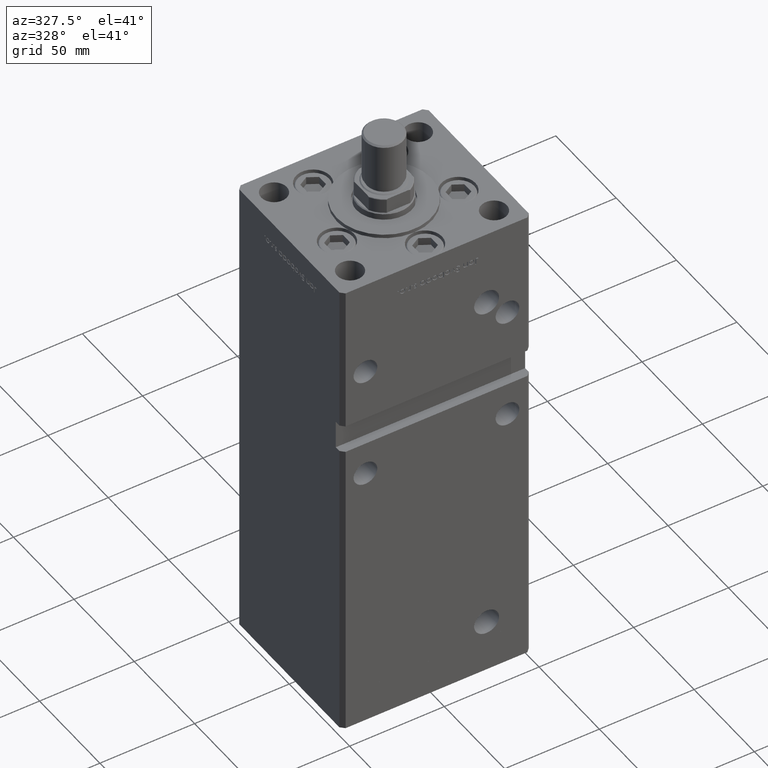
[diagram: clean part render]
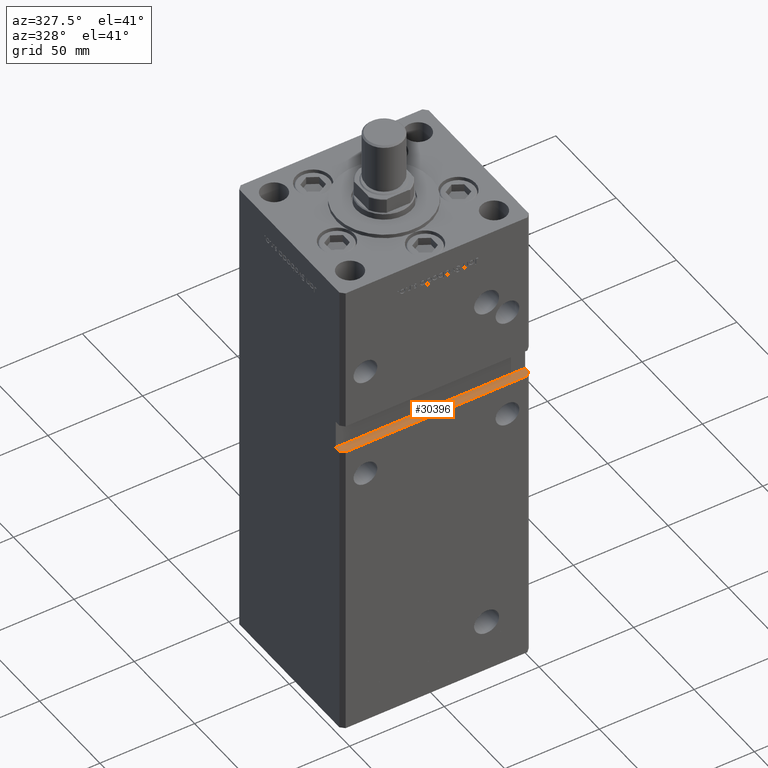
[diagram: same view with one face highlighted and labeled with its STEP entity id]
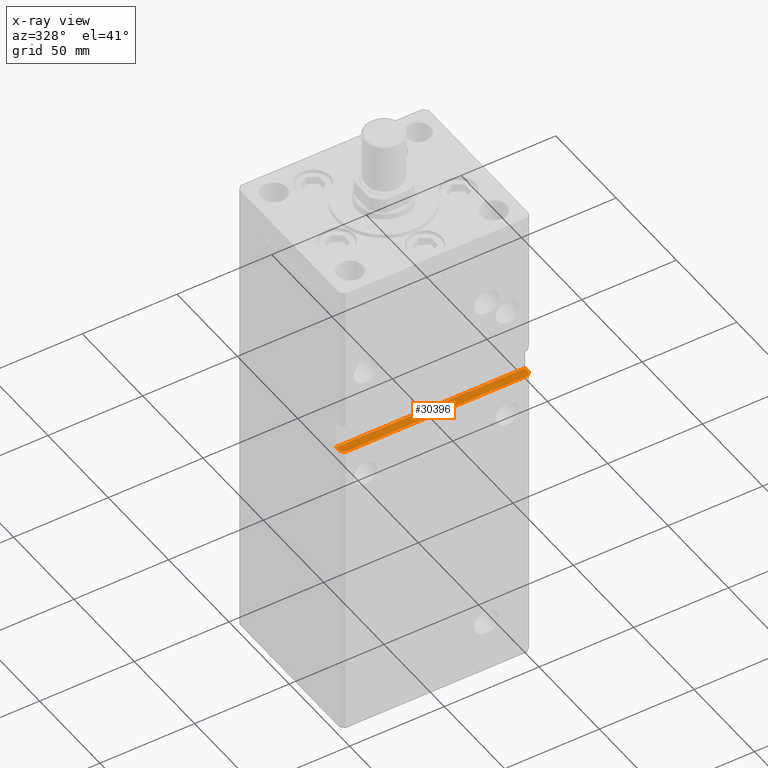
[diagram: x-ray of the same camera — body ghosted, the highlighted face saturated]
A machine part, auxiliary view. The second image highlights one B-rep face of the part: STEP entity #30396.
The next image is the same camera in x-ray: the body ghosted, the highlighted face saturated — about 0% of this face is hidden behind the body in this view.
In plain terms, the highlighted planar face has unit normal (0, 0, -1).
Its self-contained STEP definition (entity closure, byte-faithful):
#951 = VECTOR ( 'NONE', #53169, 1000.000000000000114 ) ;
#1305 = EDGE_CURVE ( 'NONE', #25939, #12385, #15777, .T. ) ;
#1417 = DIRECTION ( 'NONE',  ( -0.7071067811865474617, 0.7071067811865474617, 0.000000000000000000 ) ) ;
#3453 = DIRECTION ( 'NONE',  ( -0.000000000000000000, -1.000000000000000000, -0.000000000000000000 ) ) ;
#6760 = EDGE_CURVE ( 'NONE', #9428, #38335, #24868, .T. ) ;
#7748 = ORIENTED_EDGE ( 'NONE', *, *, #6760, .T. ) ;
#7848 = CARTESIAN_POINT ( 'NONE',  ( -49.99999999999998579, -38.50000000000000000, 144.0000000000000284 ) ) ;
#8162 = VERTEX_POINT ( 'NONE', #28014 ) ;
#8803 = CARTESIAN_POINT ( 'NONE',  ( -49.99999999999998579, -43.50000000000000000, 144.0000000000000284 ) ) ;
#9428 = VERTEX_POINT ( 'NONE', #49867 ) ;
#12385 = VERTEX_POINT ( 'NONE', #36416 ) ;
#15777 = LINE ( 'NONE', #20359, #951 ) ;
#16863 = LINE ( 'NONE', #39727, #47905 ) ;
#17102 = CARTESIAN_POINT ( 'NONE',  ( -49.99999999999998579, -38.50000000000000000, 144.0000000000000284 ) ) ;
#17837 = ORIENTED_EDGE ( 'NONE', *, *, #21305, .T. ) ;
#20094 = VECTOR ( 'NONE', #49622, 1000.000000000000000 ) ;
#20359 = CARTESIAN_POINT ( 'NONE',  ( 49.99999999999998579, -41.49999999999999289, 144.0000000000000284 ) ) ;
#20605 = ORIENTED_EDGE ( 'NONE', *, *, #30191, .F. ) ;
#20978 = VECTOR ( 'NONE', #1417, 1000.000000000000114 ) ;
#21305 = EDGE_CURVE ( 'NONE', #52459, #25939, #53289, .T. ) ;
#22252 = ORIENTED_EDGE ( 'NONE', *, *, #26364, .F. ) ;
#23688 = AXIS2_PLACEMENT_3D ( 'NONE', #7848, #28734, #44455 ) ;
#24294 = CARTESIAN_POINT ( 'NONE',  ( 47.99999999999998579, -43.50000000000000000, 144.0000000000000284 ) ) ;
#24868 = LINE ( 'NONE', #48725, #33881 ) ;
#25939 = VERTEX_POINT ( 'NONE', #24294 ) ;
#26092 = CARTESIAN_POINT ( 'NONE',  ( -49.99999999999998579, -41.49999999999999289, 144.0000000000000284 ) ) ;
#26364 = EDGE_CURVE ( 'NONE', #52459, #38335, #35567, .T. ) ;
#26594 = EDGE_CURVE ( 'NONE', #9428, #8162, #45549, .T. ) ;
#27311 = ORIENTED_EDGE ( 'NONE', *, *, #1305, .T. ) ;
#28014 = CARTESIAN_POINT ( 'NONE',  ( 49.99999999999998579, -38.49999999999999289, 144.0000000000000284 ) ) ;
#28347 = DIRECTION ( 'NONE',  ( 1.000000000000000000, 0.000000000000000000, 0.000000000000000000 ) ) ;
#28734 = DIRECTION ( 'NONE',  ( 0.000000000000000000, 0.000000000000000000, -1.000000000000000000 ) ) ;
#30191 = EDGE_CURVE ( 'NONE', #8162, #12385, #16863, .T. ) ;
#30396 = ADVANCED_FACE ( 'NONE', ( #48788 ), #49588, .F. ) ;
#33512 = CARTESIAN_POINT ( 'NONE',  ( -47.99999999999998579, -43.50000000000000000, 144.0000000000000284 ) ) ;
#33881 = VECTOR ( 'NONE', #3453, 1000.000000000000000 ) ;
#35567 = LINE ( 'NONE', #26092, #20978 ) ;
#35669 = DIRECTION ( 'NONE',  ( -0.000000000000000000, -1.000000000000000000, -0.000000000000000000 ) ) ;
#36416 = CARTESIAN_POINT ( 'NONE',  ( 49.99999999999998579, -41.49999999999999289, 144.0000000000000284 ) ) ;
#38335 = VERTEX_POINT ( 'NONE', #38654 ) ;
#38654 = CARTESIAN_POINT ( 'NONE',  ( -49.99999999999998579, -41.49999999999999289, 144.0000000000000284 ) ) ;
#39727 = CARTESIAN_POINT ( 'NONE',  ( 49.99999999999998579, -38.50000000000000000, 144.0000000000000284 ) ) ;
#44148 = VECTOR ( 'NONE', #28347, 1000.000000000000000 ) ;
#44455 = DIRECTION ( 'NONE',  ( -1.000000000000000000, 0.000000000000000000, -0.000000000000000000 ) ) ;
#45549 = LINE ( 'NONE', #17102, #20094 ) ;
#47905 = VECTOR ( 'NONE', #35669, 1000.000000000000000 ) ;
#48725 = CARTESIAN_POINT ( 'NONE',  ( -49.99999999999998579, -38.50000000000000000, 144.0000000000000284 ) ) ;
#48788 = FACE_OUTER_BOUND ( 'NONE', #53446, .T. ) ;
#49588 = PLANE ( 'NONE',  #23688 ) ;
#49622 = DIRECTION ( 'NONE',  ( 1.000000000000000000, 0.000000000000000000, 0.000000000000000000 ) ) ;
#49867 = CARTESIAN_POINT ( 'NONE',  ( -49.99999999999998579, -38.50000000000000000, 144.0000000000000284 ) ) ;
#51235 = ORIENTED_EDGE ( 'NONE', *, *, #26594, .F. ) ;
#52459 = VERTEX_POINT ( 'NONE', #33512 ) ;
#53169 = DIRECTION ( 'NONE',  ( 0.7071067811865474617, 0.7071067811865474617, 0.000000000000000000 ) ) ;
#53289 = LINE ( 'NONE', #8803, #44148 ) ;
#53446 = EDGE_LOOP ( 'NONE', ( #17837, #27311, #20605, #51235, #7748, #22252 ) ) ;